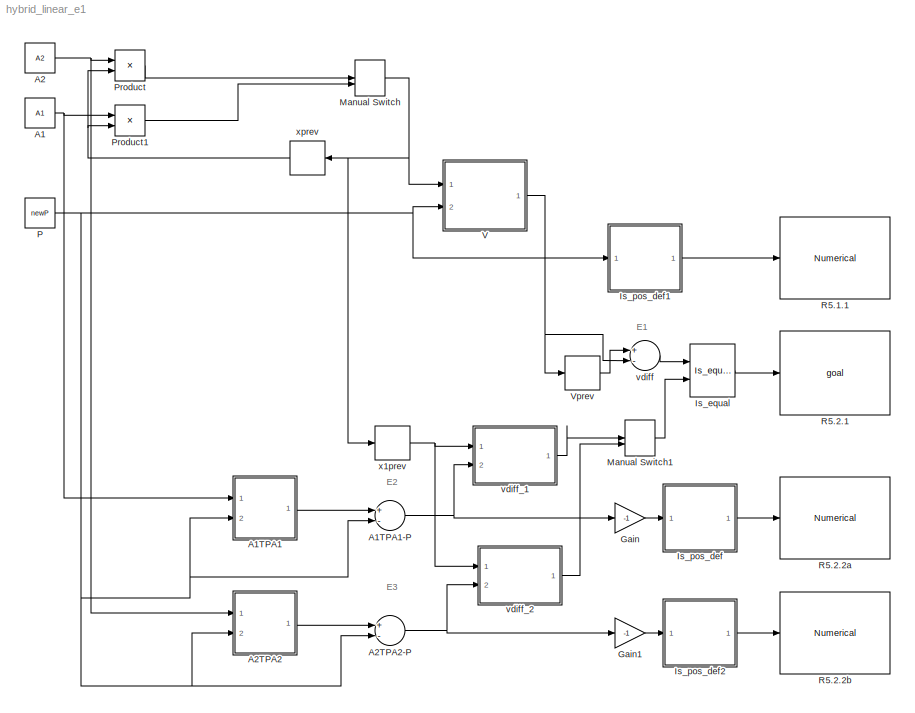
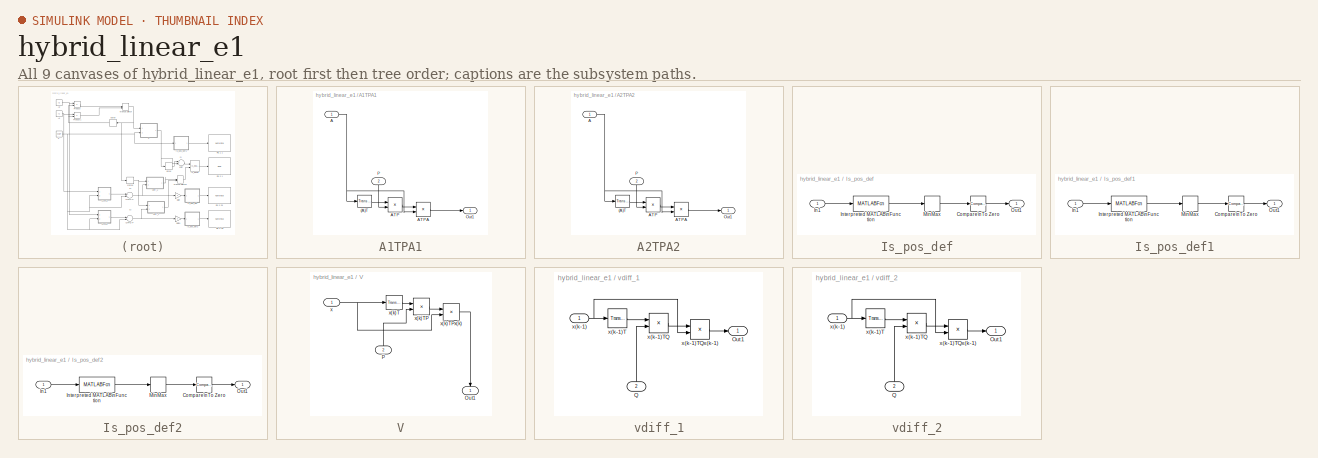
[diagram: thumbnail index - all 9 canvases of the model, root first then tree order]
MODEL hybrid_linear_e1
KIND model
BLOCK [Constant] A1
  SID = 1
  Value = A1
  VectorParams1D = off
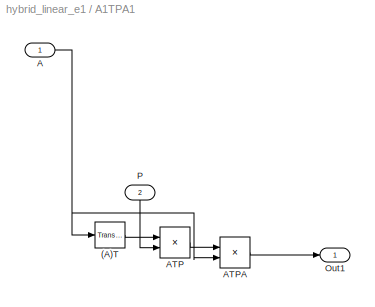
BLOCK [SubSystem] A1TPA1
  FunctionWithSeparateData = off
  MaskHideContents = off
  MinAlgLoopOccurrences = off
  Opaque = off
  Ports = [2, 1]
  PropExecContextOutsideSubsystem = off
  RTWSystemCode = Auto
  RequestExecContextInheritance = off
  SID = 2
BLOCK [Sum] A1TPA1-P
  InputSameDT = off
  Inputs = +-
  OutDataTypeStr = Inherit: Inherit via internal rule
  Ports = [2, 1]
  SID = 9
  SaturateOnIntegerOverflow = off
BLOCK [Reference] A1TPA1/(A)T  REF=dspmtrx3/Transpose
  Hermitian = off
  Ports = [1, 1]
  SID = 5
  SourceBlock = dspmtrx3/Transpose
  SourceType = Transpose
  overflowFlag = off
BLOCK [Inport] A1TPA1/A
  IconDisplay = Port number
  SID = 3
BLOCK [Product] A1TPA1/ATP
  InputSameDT = off
  Multiplication = Matrix(*)
  OutDataTypeStr = Inherit: Inherit via internal rule
  Ports = [2, 1]
  RndMeth = Floor
  SID = 6
  SaturateOnIntegerOverflow = off
BLOCK [Product] A1TPA1/ATPA
  InputSameDT = off
  Multiplication = Matrix(*)
  OutDataTypeStr = Inherit: Inherit via internal rule
  Ports = [2, 1]
  RndMeth = Floor
  SID = 7
  SaturateOnIntegerOverflow = off
BLOCK [Outport] A1TPA1/Out1
  IconDisplay = Port number
  SID = 8
BLOCK [Inport] A1TPA1/P
  IconDisplay = Port number
  Port = 2
  SID = 4
BLOCK [Constant] A2
  SID = 10
  Value = A2
  VectorParams1D = off
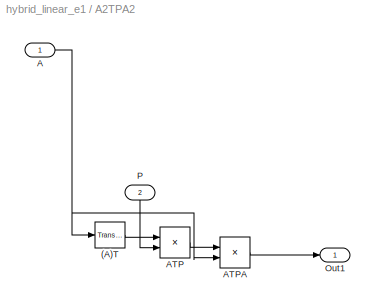
BLOCK [SubSystem] A2TPA2
  FunctionWithSeparateData = off
  MaskHideContents = off
  MinAlgLoopOccurrences = off
  Opaque = off
  Ports = [2, 1]
  PropExecContextOutsideSubsystem = off
  RTWSystemCode = Auto
  RequestExecContextInheritance = off
  SID = 11
BLOCK [Sum] A2TPA2-P
  InputSameDT = off
  Inputs = +-
  OutDataTypeStr = Inherit: Inherit via internal rule
  Ports = [2, 1]
  SID = 18
  SaturateOnIntegerOverflow = off
BLOCK [Reference] A2TPA2/(A)T  REF=dspmtrx3/Transpose
  Hermitian = off
  Ports = [1, 1]
  SID = 14
  SourceBlock = dspmtrx3/Transpose
  SourceType = Transpose
  overflowFlag = off
BLOCK [Inport] A2TPA2/A
  IconDisplay = Port number
  SID = 12
BLOCK [Product] A2TPA2/ATP
  InputSameDT = off
  Multiplication = Matrix(*)
  OutDataTypeStr = Inherit: Inherit via internal rule
  Ports = [2, 1]
  RndMeth = Floor
  SID = 15
  SaturateOnIntegerOverflow = off
BLOCK [Product] A2TPA2/ATPA
  InputSameDT = off
  Multiplication = Matrix(*)
  OutDataTypeStr = Inherit: Inherit via internal rule
  Ports = [2, 1]
  RndMeth = Floor
  SID = 16
  SaturateOnIntegerOverflow = off
BLOCK [Outport] A2TPA2/Out1
  IconDisplay = Port number
  SID = 17
BLOCK [Inport] A2TPA2/P
  IconDisplay = Port number
  Port = 2
  SID = 13
BLOCK [Gain] Gain
  Gain = -1
  OutDataTypeStr = Inherit: Inherit via internal rule
  ParamDataTypeStr = Inherit: Inherit via internal rule
  SID = 19
  SaturateOnIntegerOverflow = off
BLOCK [Gain] Gain1
  Gain = -1
  OutDataTypeStr = Inherit: Inherit via internal rule
  ParamDataTypeStr = Inherit: Inherit via internal rule
  SID = 20
  SaturateOnIntegerOverflow = off
BLOCK [Reference] Is_equal  REF=Is_equal_scalar/Is_equal_scalar
  FunctionWithSeparateData = off
  GeneratePreprocessorConditionals = off
  Ports = [2, 1]
  SID = 21
  ShowPortLabels = FromPortIcon
  SourceBlock = Is_equal_scalar/Is_equal_scalar
  SourceType = Is_equal_scalar
  SystemSampleTime = -1
BLOCK [SubSystem] Is_pos_def
  FunctionWithSeparateData = off
  MaskHideContents = off
  MinAlgLoopOccurrences = off
  Opaque = off
  Ports = [1, 1]
  PropExecContextOutsideSubsystem = off
  RTWSystemCode = Auto
  RequestExecContextInheritance = off
  SID = 22
  TreatAsAtomicUnit = on
BLOCK [Reference] Is_pos_def/Compare\nTo Zero  REF=simulink/Logic and Bit\nOperations/Compare\nTo Zero
  OutDataTypeStr = boolean
  Ports = [1, 1]
  SID = 24
  SourceBlock = simulink/Logic and Bit\nOperations/Compare\nTo Zero
  SourceType = Compare To Zero
  ZeroCross = on
  relop = >=
BLOCK [Inport] Is_pos_def/In1
  IconDisplay = Port number
  SID = 23
BLOCK [MATLABFcn] Is_pos_def/Interpreted MATLAB\nFunction
  MATLABFcn = eig
  Ports = [1, 1]
  SID = 25
BLOCK [MinMax] Is_pos_def/MinMax
  InputSameDT = off
  Ports = [1, 1]
  SID = 26
  SaturateOnIntegerOverflow = off
BLOCK [Outport] Is_pos_def/Out1
  IconDisplay = Port number
  SID = 27
BLOCK [SubSystem] Is_pos_def1
  FunctionWithSeparateData = off
  MaskHideContents = off
  MinAlgLoopOccurrences = off
  Opaque = off
  Ports = [1, 1]
  PropExecContextOutsideSubsystem = off
  RTWSystemCode = Auto
  RequestExecContextInheritance = off
  SID = 28
  TreatAsAtomicUnit = on
BLOCK [Reference] Is_pos_def1/Compare\nTo Zero  REF=simulink/Logic and Bit\nOperations/Compare\nTo Zero
  OutDataTypeStr = boolean
  Ports = [1, 1]
  SID = 30
  SourceBlock = simulink/Logic and Bit\nOperations/Compare\nTo Zero
  SourceType = Compare To Zero
  ZeroCross = on
  relop = >=
BLOCK [Inport] Is_pos_def1/In1
  IconDisplay = Port number
  SID = 29
BLOCK [MATLABFcn] Is_pos_def1/Interpreted MATLAB\nFunction
  MATLABFcn = eig
  Ports = [1, 1]
  SID = 31
BLOCK [MinMax] Is_pos_def1/MinMax
  InputSameDT = off
  Ports = [1, 1]
  SID = 32
  SaturateOnIntegerOverflow = off
BLOCK [Outport] Is_pos_def1/Out1
  IconDisplay = Port number
  SID = 33
BLOCK [SubSystem] Is_pos_def2
  FunctionWithSeparateData = off
  MaskHideContents = off
  MinAlgLoopOccurrences = off
  Opaque = off
  Ports = [1, 1]
  PropExecContextOutsideSubsystem = off
  RTWSystemCode = Auto
  RequestExecContextInheritance = off
  SID = 34
  TreatAsAtomicUnit = on
BLOCK [Reference] Is_pos_def2/Compare\nTo Zero  REF=simulink/Logic and Bit\nOperations/Compare\nTo Zero
  OutDataTypeStr = boolean
  Ports = [1, 1]
  SID = 36
  SourceBlock = simulink/Logic and Bit\nOperations/Compare\nTo Zero
  SourceType = Compare To Zero
  ZeroCross = on
  relop = >=
BLOCK [Inport] Is_pos_def2/In1
  IconDisplay = Port number
  SID = 35
BLOCK [MATLABFcn] Is_pos_def2/Interpreted MATLAB\nFunction
  MATLABFcn = eig
  Ports = [1, 1]
  SID = 37
BLOCK [MinMax] Is_pos_def2/MinMax
  InputSameDT = off
  Ports = [1, 1]
  SID = 38
  SaturateOnIntegerOverflow = off
BLOCK [Outport] Is_pos_def2/Out1
  IconDisplay = Port number
  SID = 39
BLOCK [ManualSwitch] Manual Switch
  CurrentSetting = 0
  SID = 40
BLOCK [ManualSwitch] Manual Switch1
  CurrentSetting = 0
  SID = 41
BLOCK [Constant] P
  SID = 42
  Value = newP
BLOCK [Product] Product
  InputSameDT = off
  Multiplication = Matrix(*)
  OutDataTypeStr = Inherit: Inherit via internal rule
  Ports = [2, 1]
  RndMeth = Floor
  SID = 43
  SaturateOnIntegerOverflow = off
BLOCK [Product] Product1
  InputSameDT = off
  Multiplication = Matrix(*)
  OutDataTypeStr = Inherit: Inherit via internal rule
  Ports = [2, 1]
  RndMeth = Floor
  SID = 44
  SaturateOnIntegerOverflow = off
BLOCK [Reference] R5.1.1  REF=Numerical/Numerical
  FunctionWithSeparateData = off
  GeneratePreprocessorConditionals = off
  Ports = [1]
  SID = 45
  ShowPortLabels = FromPortIcon
  SourceBlock = Numerical/Numerical
  SourceType = Numerical
  SystemSampleTime = -1
BLOCK [Reference] R5.2.1  REF=goal/goal  (lib defined in mdl_8f4c38bfa861)
  FunctionWithSeparateData = off
  GeneratePreprocessorConditionals = off
  Ports = [1]
  SID = 46
  ShowPortLabels = FromPortIcon
  SourceBlock = goal/goal
  SourceType = Goal
  SystemSampleTime = -1
BLOCK [Reference] R5.2.2a  REF=Numerical/Numerical
  FunctionWithSeparateData = off
  GeneratePreprocessorConditionals = off
  Ports = [1]
  SID = 47
  ShowPortLabels = FromPortIcon
  SourceBlock = Numerical/Numerical
  SourceType = Numerical
  SystemSampleTime = -1
BLOCK [Reference] R5.2.2b  REF=Numerical/Numerical
  FunctionWithSeparateData = off
  GeneratePreprocessorConditionals = off
  Ports = [1]
  SID = 48
  ShowPortLabels = FromPortIcon
  SourceBlock = Numerical/Numerical
  SourceType = Numerical
  SystemSampleTime = -1
BLOCK [SubSystem] V
  FunctionWithSeparateData = off
  MaskHideContents = off
  MinAlgLoopOccurrences = off
  Opaque = off
  Ports = [2, 1]
  PropExecContextOutsideSubsystem = off
  RTWSystemCode = Auto
  RequestExecContextInheritance = off
  SID = 49
BLOCK [Outport] V/Out1
  IconDisplay = Port number
  SID = 55
BLOCK [Inport] V/P
  IconDisplay = Port number
  Port = 2
  SID = 51
BLOCK [Inport] V/x
  IconDisplay = Port number
  SID = 50
BLOCK [Reference] V/x(k)T  REF=dspmtrx3/Transpose
  Hermitian = off
  Ports = [1, 1]
  SID = 52
  SourceBlock = dspmtrx3/Transpose
  SourceType = Transpose
  overflowFlag = off
BLOCK [Product] V/x(k)TP
  InputSameDT = off
  Multiplication = Matrix(*)
  OutDataTypeStr = Inherit: Inherit via internal rule
  Ports = [2, 1]
  RndMeth = Floor
  SID = 53
  SaturateOnIntegerOverflow = off
BLOCK [Product] V/x(k)TPx(k)
  InputSameDT = off
  Multiplication = Matrix(*)
  OutDataTypeStr = Inherit: Inherit via internal rule
  Ports = [2, 1]
  RndMeth = Floor
  SID = 54
  SaturateOnIntegerOverflow = off
BLOCK [Delay] Vprev
  DelayLength = 1
  InitialCondition = x0'*newP*x0
  InputPortMap = u0
  Ports = [1, 1]
  SID = 56
  SampleTime = 0.1
BLOCK [Sum] vdiff
  InputSameDT = off
  Inputs = +-
  OutDataTypeStr = Inherit: Inherit via internal rule
  Ports = [2, 1]
  SID = 57
  SaturateOnIntegerOverflow = off
BLOCK [SubSystem] vdiff_1
  FunctionWithSeparateData = off
  MaskHideContents = off
  MinAlgLoopOccurrences = off
  Opaque = off
  Ports = [2, 1]
  PropExecContextOutsideSubsystem = off
  RTWSystemCode = Auto
  RequestExecContextInheritance = off
  SID = 58
BLOCK [Outport] vdiff_1/Out1
  IconDisplay = Port number
  SID = 64
BLOCK [Inport] vdiff_1/Q
  IconDisplay = Port number
  Port = 2
  SID = 60
BLOCK [Inport] vdiff_1/x(k-1)
  IconDisplay = Port number
  SID = 59
BLOCK [Reference] vdiff_1/x(k-1)T  REF=dspmtrx3/Transpose
  Hermitian = off
  Ports = [1, 1]
  SID = 61
  SourceBlock = dspmtrx3/Transpose
  SourceType = Transpose
  overflowFlag = off
BLOCK [Product] vdiff_1/x(k-1)TQ
  InputSameDT = off
  Multiplication = Matrix(*)
  OutDataTypeStr = Inherit: Inherit via internal rule
  Ports = [2, 1]
  RndMeth = Floor
  SID = 62
  SaturateOnIntegerOverflow = off
BLOCK [Product] vdiff_1/x(k-1)TQx(k-1)
  InputSameDT = off
  Multiplication = Matrix(*)
  OutDataTypeStr = Inherit: Inherit via internal rule
  Ports = [2, 1]
  RndMeth = Floor
  SID = 63
  SaturateOnIntegerOverflow = off
BLOCK [SubSystem] vdiff_2
  FunctionWithSeparateData = off
  MaskHideContents = off
  MinAlgLoopOccurrences = off
  Opaque = off
  Ports = [2, 1]
  PropExecContextOutsideSubsystem = off
  RTWSystemCode = Auto
  RequestExecContextInheritance = off
  SID = 65
BLOCK [Outport] vdiff_2/Out1
  IconDisplay = Port number
  SID = 71
BLOCK [Inport] vdiff_2/Q
  IconDisplay = Port number
  Port = 2
  SID = 67
BLOCK [Inport] vdiff_2/x(k-1)
  IconDisplay = Port number
  SID = 66
BLOCK [Reference] vdiff_2/x(k-1)T  REF=dspmtrx3/Transpose
  Hermitian = off
  Ports = [1, 1]
  SID = 68
  SourceBlock = dspmtrx3/Transpose
  SourceType = Transpose
  overflowFlag = off
BLOCK [Product] vdiff_2/x(k-1)TQ
  InputSameDT = off
  Multiplication = Matrix(*)
  OutDataTypeStr = Inherit: Inherit via internal rule
  Ports = [2, 1]
  RndMeth = Floor
  SID = 69
  SaturateOnIntegerOverflow = off
BLOCK [Product] vdiff_2/x(k-1)TQx(k-1)
  InputSameDT = off
  Multiplication = Matrix(*)
  OutDataTypeStr = Inherit: Inherit via internal rule
  Ports = [2, 1]
  RndMeth = Floor
  SID = 70
  SaturateOnIntegerOverflow = off
BLOCK [Delay] x1prev
  DelayLength = 1
  InitialCondition = x0
  InputPortMap = u0
  Ports = [1, 1]
  SID = 72
BLOCK [Delay] xprev
  DelayLength = 1
  InitialCondition = x0
  InputPortMap = u0
  Ports = [1, 1]
  SID = 73
ANNOTATION (root): E1
ANNOTATION (root): E2
ANNOTATION (root): E3
NET A1:1 -> A1TPA1:1, Product1:1
NET A1TPA1-P:1 -> Gain:1, vdiff_1:2
LINE A1TPA1/(A)T:1 -> A1TPA1/ATP:1
NET A1TPA1/A:1 -> A1TPA1/(A)T:1, A1TPA1/ATPA:2
LINE A1TPA1/ATP:1 -> A1TPA1/ATPA:1
LINE A1TPA1/ATPA:1 -> A1TPA1/Out1:1
LINE A1TPA1/P:1 -> A1TPA1/ATP:2
LINE A1TPA1:1 -> A1TPA1-P:1
NET A2:1 -> A2TPA2:1, Product:1
NET A2TPA2-P:1 -> Gain1:1, vdiff_2:2
LINE A2TPA2/(A)T:1 -> A2TPA2/ATP:1
NET A2TPA2/A:1 -> A2TPA2/(A)T:1, A2TPA2/ATPA:2
LINE A2TPA2/ATP:1 -> A2TPA2/ATPA:1
LINE A2TPA2/ATPA:1 -> A2TPA2/Out1:1
LINE A2TPA2/P:1 -> A2TPA2/ATP:2
LINE A2TPA2:1 -> A2TPA2-P:1
LINE Gain1:1 -> Is_pos_def2:1
LINE Gain:1 -> Is_pos_def:1
LINE Is_equal:1 -> R5.2.1:1
LINE Is_pos_def/Compare\nTo Zero:1 -> Is_pos_def/Out1:1
LINE Is_pos_def/In1:1 -> Is_pos_def/Interpreted MATLAB\nFunction:1
LINE Is_pos_def/Interpreted MATLAB\nFunction:1 -> Is_pos_def/MinMax:1
LINE Is_pos_def/MinMax:1 -> Is_pos_def/Compare\nTo Zero:1
LINE Is_pos_def1/Compare\nTo Zero:1 -> Is_pos_def1/Out1:1
LINE Is_pos_def1/In1:1 -> Is_pos_def1/Interpreted MATLAB\nFunction:1
LINE Is_pos_def1/Interpreted MATLAB\nFunction:1 -> Is_pos_def1/MinMax:1
LINE Is_pos_def1/MinMax:1 -> Is_pos_def1/Compare\nTo Zero:1
LINE Is_pos_def1:1 -> R5.1.1:1
LINE Is_pos_def2/Compare\nTo Zero:1 -> Is_pos_def2/Out1:1
LINE Is_pos_def2/In1:1 -> Is_pos_def2/Interpreted MATLAB\nFunction:1
LINE Is_pos_def2/Interpreted MATLAB\nFunction:1 -> Is_pos_def2/MinMax:1
LINE Is_pos_def2/MinMax:1 -> Is_pos_def2/Compare\nTo Zero:1
LINE Is_pos_def2:1 -> R5.2.2b:1
LINE Is_pos_def:1 -> R5.2.2a:1
LINE Manual Switch1:1 -> Is_equal:2
NET Manual Switch:1 -> V:1, x1prev:1, xprev:1
NET P:1 -> A1TPA1-P:2, A1TPA1:2, A2TPA2-P:2, A2TPA2:2, Is_pos_def1:1, V:2
LINE Product1:1 -> Manual Switch:2
LINE Product:1 -> Manual Switch:1
LINE V/P:1 -> V/x(k)TP:2
LINE V/x(k)T:1 -> V/x(k)TP:1
LINE V/x(k)TP:1 -> V/x(k)TPx(k):1
LINE V/x(k)TPx(k):1 -> V/Out1:1
NET V/x:1 -> V/x(k)T:1, V/x(k)TPx(k):2
NET V:1 -> Vprev:1, vdiff:2
LINE Vprev:1 -> vdiff:1
LINE vdiff:1 -> Is_equal:1
LINE vdiff_1/Q:1 -> vdiff_1/x(k-1)TQ:2
NET vdiff_1/x(k-1):1 -> vdiff_1/x(k-1)T:1, vdiff_1/x(k-1)TQx(k-1):2
LINE vdiff_1/x(k-1)T:1 -> vdiff_1/x(k-1)TQ:1
LINE vdiff_1/x(k-1)TQ:1 -> vdiff_1/x(k-1)TQx(k-1):1
LINE vdiff_1/x(k-1)TQx(k-1):1 -> vdiff_1/Out1:1
LINE vdiff_1:1 -> Manual Switch1:1
LINE vdiff_2/Q:1 -> vdiff_2/x(k-1)TQ:2
NET vdiff_2/x(k-1):1 -> vdiff_2/x(k-1)T:1, vdiff_2/x(k-1)TQx(k-1):2
LINE vdiff_2/x(k-1)T:1 -> vdiff_2/x(k-1)TQ:1
LINE vdiff_2/x(k-1)TQ:1 -> vdiff_2/x(k-1)TQx(k-1):1
LINE vdiff_2/x(k-1)TQx(k-1):1 -> vdiff_2/Out1:1
LINE vdiff_2:1 -> Manual Switch1:2
NET x1prev:1 -> vdiff_1:1, vdiff_2:1
NET xprev:1 -> Product1:2, Product:2
note: NET lines group one-source signal fan-out (src -> all destinations, sorted); 1:1 wires keep LINE
